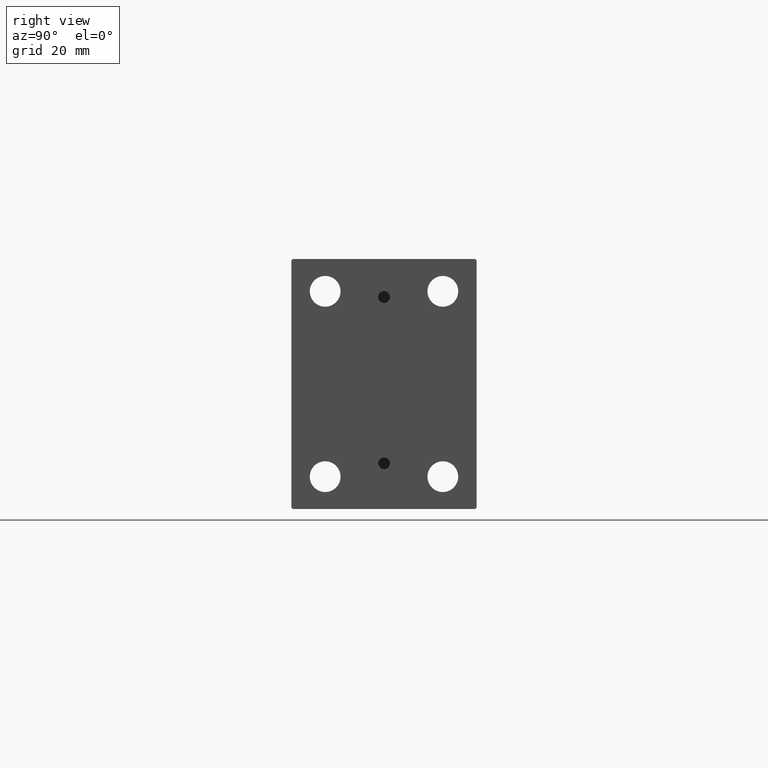
[diagram: clean part render]
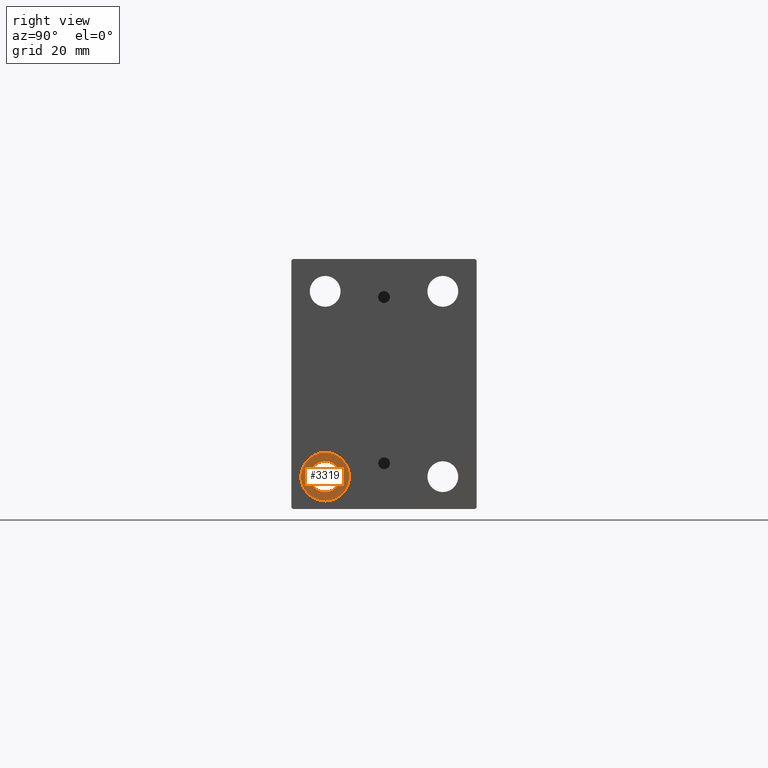
[diagram: same view with one face highlighted and labeled with its STEP entity id]
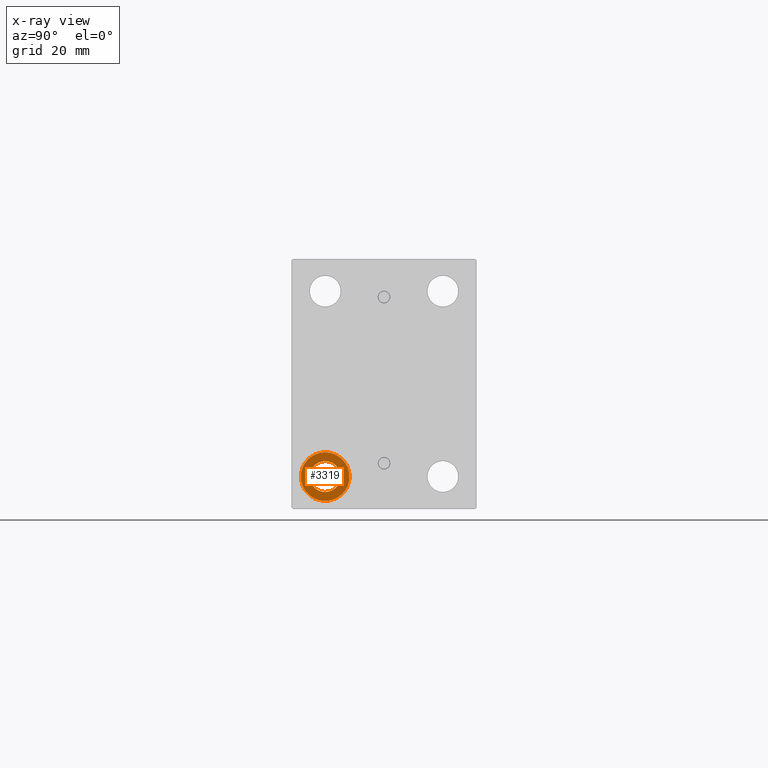
[diagram: x-ray of the same camera — body ghosted, the highlighted face saturated]
A machine part, right view. The second image highlights one B-rep face of the part: STEP entity #3319.
The next image is the same camera in x-ray: the body ghosted, the highlighted face saturated — about 0% of this face is hidden behind the body in this view.
In plain terms, the highlighted planar face has unit normal (1, 0, 0).
Its self-contained STEP definition (entity closure, byte-faithful):
#2086 = AXIS2_PLACEMENT_3D ( 'NONE', #16488, #16703, #2550 ) ;
#2343 = CIRCLE ( 'NONE', #32045, 8.250000000000000000 ) ;
#2550 = DIRECTION ( 'NONE',  ( 0.000000000000000000, 0.000000000000000000, 1.000000000000000000 ) ) ;
#2593 = ORIENTED_EDGE ( 'NONE', *, *, #14392, .T. ) ;
#2764 = FACE_OUTER_BOUND ( 'NONE', #13702, .T. ) ;
#3319 = ADVANCED_FACE ( 'NONE', ( #2764, #26639 ), #19583, .T. ) ;
#4462 = VERTEX_POINT ( 'NONE', #16872 ) ;
#5093 = CIRCLE ( 'NONE', #26960, 5.249999999999997335 ) ;
#5585 = CIRCLE ( 'NONE', #12678, 8.250000000000000000 ) ;
#6801 = CARTESIAN_POINT ( 'NONE',  ( 201.9999999999999716, -20.00000000000000355, -39.74999999999999289 ) ) ;
#9032 = EDGE_CURVE ( 'NONE', #9700, #4462, #5093, .T. ) ;
#9700 = VERTEX_POINT ( 'NONE', #29498 ) ;
#11526 = DIRECTION ( 'NONE',  ( 0.000000000000000000, 0.000000000000000000, -1.000000000000000000 ) ) ;
#12678 = AXIS2_PLACEMENT_3D ( 'NONE', #28730, #27866, #34930 ) ;
#13550 = EDGE_CURVE ( 'NONE', #33728, #33754, #2343, .T. ) ;
#13702 = EDGE_LOOP ( 'NONE', ( #39883, #22300 ) ) ;
#14392 = EDGE_CURVE ( 'NONE', #4462, #9700, #20759, .T. ) ;
#15392 = DIRECTION ( 'NONE',  ( 0.000000000000000000, 0.000000000000000000, 1.000000000000000000 ) ) ;
#15854 = ORIENTED_EDGE ( 'NONE', *, *, #9032, .T. ) ;
#16488 = CARTESIAN_POINT ( 'NONE',  ( 201.9999999999999716, 0.000000000000000000, 0.000000000000000000 ) ) ;
#16703 = DIRECTION ( 'NONE',  ( 1.000000000000000000, 0.000000000000000000, -0.000000000000000000 ) ) ;
#16872 = CARTESIAN_POINT ( 'NONE',  ( 201.9999999999999716, -20.00000000000000355, -26.24999999999999289 ) ) ;
#17626 = DIRECTION ( 'NONE',  ( 0.000000000000000000, 0.000000000000000000, -1.000000000000000000 ) ) ;
#18711 = DIRECTION ( 'NONE',  ( -1.000000000000000000, -0.000000000000000000, -0.000000000000000000 ) ) ;
#19583 = PLANE ( 'NONE',  #2086 ) ;
#20091 = CARTESIAN_POINT ( 'NONE',  ( 201.9999999999999716, -20.00000000000000355, -23.24999999999999289 ) ) ;
#20733 = DIRECTION ( 'NONE',  ( -1.000000000000000000, -0.000000000000000000, -0.000000000000000000 ) ) ;
#20759 = CIRCLE ( 'NONE', #34851, 5.249999999999997335 ) ;
#22034 = CARTESIAN_POINT ( 'NONE',  ( 201.9999999999999716, -20.00000000000000355, -31.49999999999999289 ) ) ;
#22300 = ORIENTED_EDGE ( 'NONE', *, *, #13550, .F. ) ;
#25420 = DIRECTION ( 'NONE',  ( -1.000000000000000000, -0.000000000000000000, -0.000000000000000000 ) ) ;
#26639 = FACE_BOUND ( 'NONE', #29176, .T. ) ;
#26960 = AXIS2_PLACEMENT_3D ( 'NONE', #38468, #25420, #11526 ) ;
#27866 = DIRECTION ( 'NONE',  ( -1.000000000000000000, -0.000000000000000000, -0.000000000000000000 ) ) ;
#28730 = CARTESIAN_POINT ( 'NONE',  ( 201.9999999999999716, -20.00000000000000355, -31.49999999999999289 ) ) ;
#29176 = EDGE_LOOP ( 'NONE', ( #2593, #15854 ) ) ;
#29498 = CARTESIAN_POINT ( 'NONE',  ( 201.9999999999999716, -20.00000000000000355, -36.74999999999999289 ) ) ;
#32045 = AXIS2_PLACEMENT_3D ( 'NONE', #22034, #18711, #15392 ) ;
#33728 = VERTEX_POINT ( 'NONE', #20091 ) ;
#33754 = VERTEX_POINT ( 'NONE', #6801 ) ;
#34851 = AXIS2_PLACEMENT_3D ( 'NONE', #37519, #20733, #17626 ) ;
#34930 = DIRECTION ( 'NONE',  ( 0.000000000000000000, 0.000000000000000000, 1.000000000000000000 ) ) ;
#36783 = EDGE_CURVE ( 'NONE', #33754, #33728, #5585, .T. ) ;
#37519 = CARTESIAN_POINT ( 'NONE',  ( 201.9999999999999716, -20.00000000000000355, -31.49999999999999289 ) ) ;
#38468 = CARTESIAN_POINT ( 'NONE',  ( 201.9999999999999716, -20.00000000000000355, -31.49999999999999289 ) ) ;
#39883 = ORIENTED_EDGE ( 'NONE', *, *, #36783, .F. ) ;